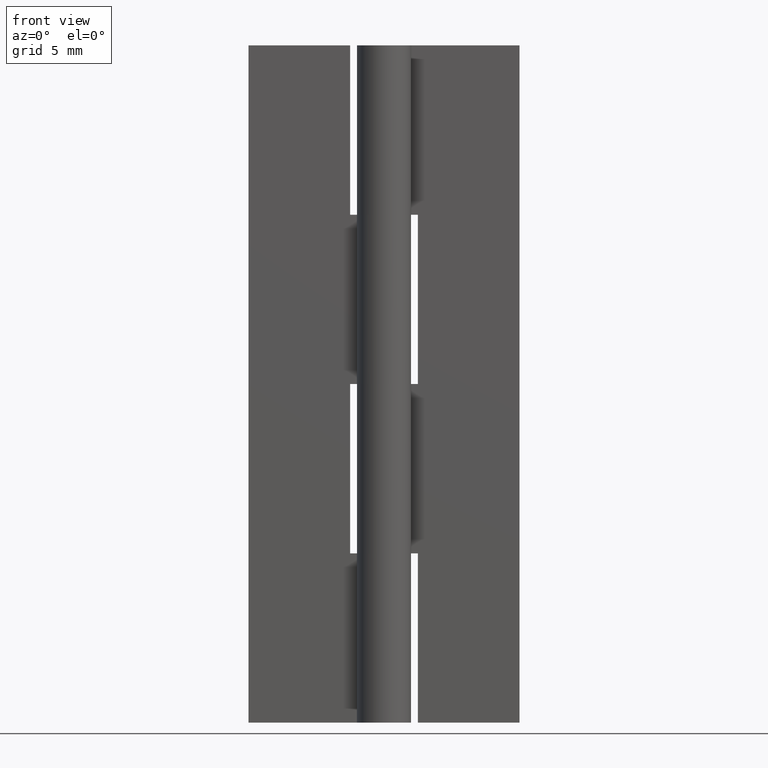
[diagram: clean part render]
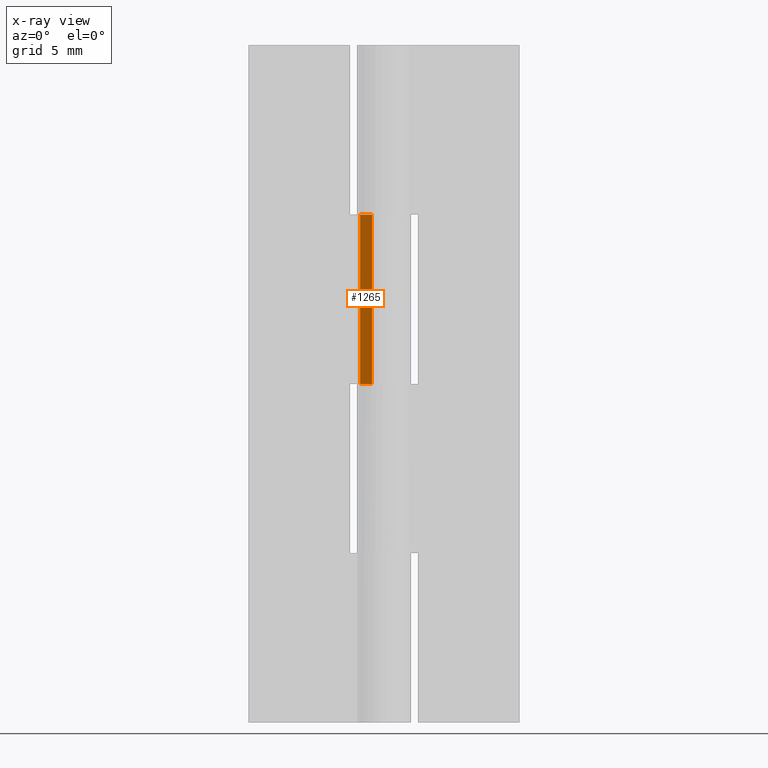
[diagram: x-ray — body ghosted, one internal face saturated and labeled with its STEP entity id]
A machine part, front view, then the same camera in x-ray: the body is ghosted and one INTERNAL B-rep face — a face not visible from any outside direction — is saturated and labeled: STEP entity #1265.
In plain terms, the highlighted face is a freeform B-spline surface patch.
Its self-contained STEP definition (entity closure, byte-faithful):
#729=CARTESIAN_POINT('',(-0.879985795339902,0.475000000000000,37.500000000000000));
#730=VERTEX_POINT('',#729);
#750=CARTESIAN_POINT('',(-1.759971590679805,0.950000000000000,37.500000000000000));
#751=VERTEX_POINT('',#750);
#752=CARTESIAN_POINT('',(-1.759971590679805,0.950000000000000,37.500000000000000));
#753=CARTESIAN_POINT('',(-0.879985795339902,0.475000000000000,37.500000000000000));
#754=QUASI_UNIFORM_CURVE('',1,(#752,#753),.UNSPECIFIED.,.F.,.U.);
#755=EDGE_CURVE('',#751,#730,#754,.T.);
#812=CARTESIAN_POINT('',(-1.759971590679805,0.950000000000000,25.0));
#813=VERTEX_POINT('',#812);
#835=CARTESIAN_POINT('',(-0.879985795339902,0.475000000000000,25.0));
#836=VERTEX_POINT('',#835);
#837=CARTESIAN_POINT('',(-0.879985795339902,0.475000000000000,25.0));
#838=CARTESIAN_POINT('',(-1.759971590679805,0.950000000000000,25.0));
#839=QUASI_UNIFORM_CURVE('',1,(#837,#838),.UNSPECIFIED.,.F.,.U.);
#840=EDGE_CURVE('',#836,#813,#839,.T.);
#1242=CARTESIAN_POINT('',(-0.879985795339902,0.475000000000000,37.500000000000000));
#1243=CARTESIAN_POINT('',(-0.879985795339902,0.475000000000000,25.0));
#1244=QUASI_UNIFORM_CURVE('',1,(#1242,#1243),.UNSPECIFIED.,.F.,.U.);
#1245=EDGE_CURVE('',#730,#836,#1244,.T.);
#1250=CARTESIAN_POINT('',(-0.836030514828934,0.451273755379602,24.375625024227428));
#1251=CARTESIAN_POINT('',(-1.803926902661518,0.973726261607721,24.375625024227428));
#1252=CARTESIAN_POINT('',(-0.836030514828934,0.451273755379602,38.124375311048702));
#1253=CARTESIAN_POINT('',(-1.803926902661518,0.973726261607721,38.124375311048702));
#1254=B_SPLINE_SURFACE_WITH_KNOTS('',1,1,((#1250,#1252),(#1251,#1253)),.UNSPECIFIED.,.F.,.F.,.U.,(2,2),(2,2),(0.041708342771232,0.958291687031090),(0.0,13.748750286821281),.UNSPECIFIED.);
#1255=CARTESIAN_POINT('',(-1.759971590679805,0.950000000000000,37.500000000000000));
#1256=CARTESIAN_POINT('',(-1.759971590679805,0.950000000000000,25.0));
#1257=QUASI_UNIFORM_CURVE('',1,(#1255,#1256),.UNSPECIFIED.,.F.,.U.);
#1258=EDGE_CURVE('',#751,#813,#1257,.T.);
#1259=ORIENTED_EDGE('',*,*,#1258,.F.);
#1260=ORIENTED_EDGE('',*,*,#755,.T.);
#1261=ORIENTED_EDGE('',*,*,#1245,.T.);
#1262=ORIENTED_EDGE('',*,*,#840,.T.);
#1263=EDGE_LOOP('',(#1259,#1260,#1261,#1262));
#1264=FACE_OUTER_BOUND('',#1263,.T.);
#1265=ADVANCED_FACE('',(#1264),#1254,.T.);